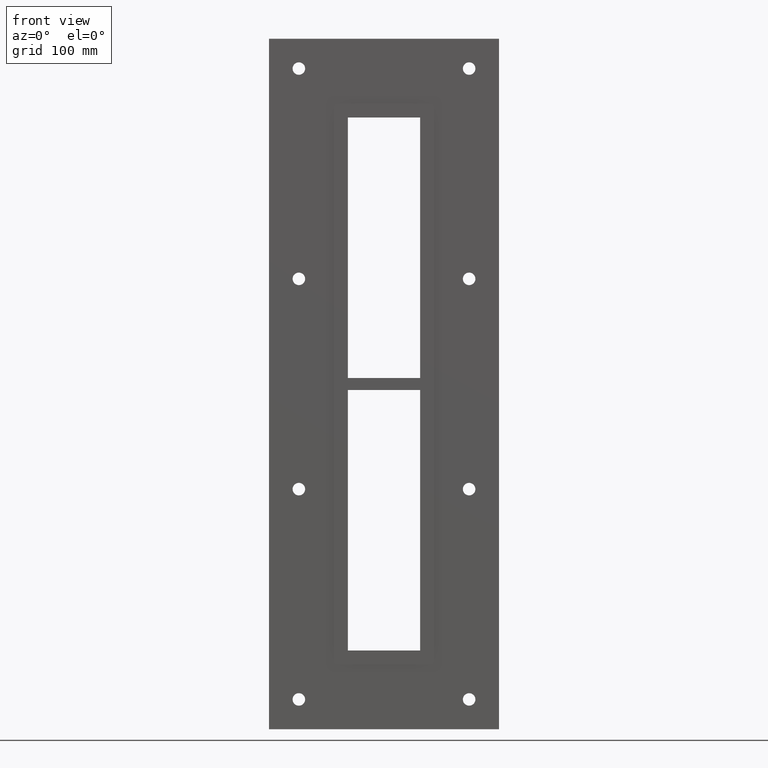
[diagram: clean part render]
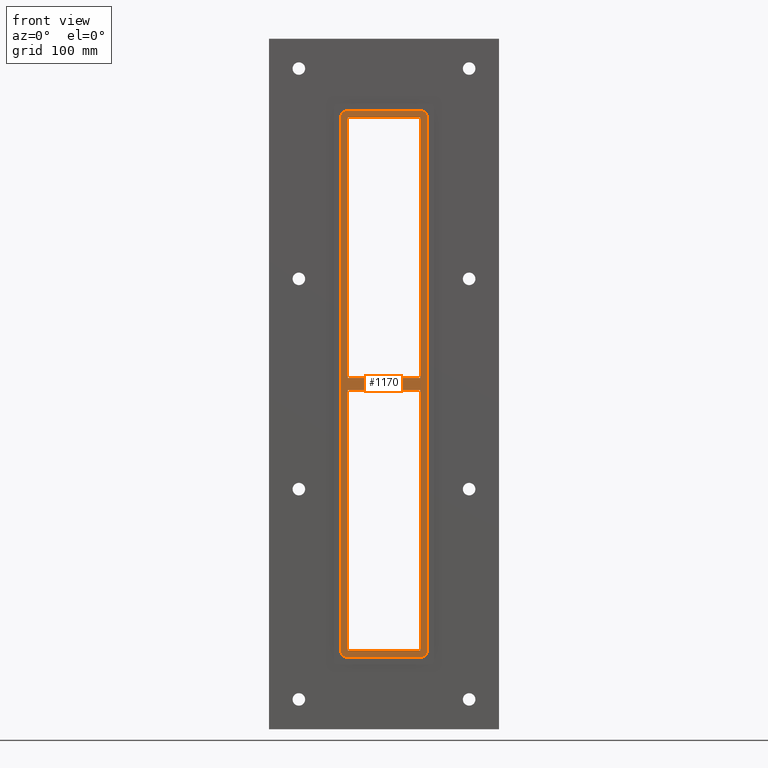
[diagram: same view with one face highlighted and labeled with its STEP entity id]
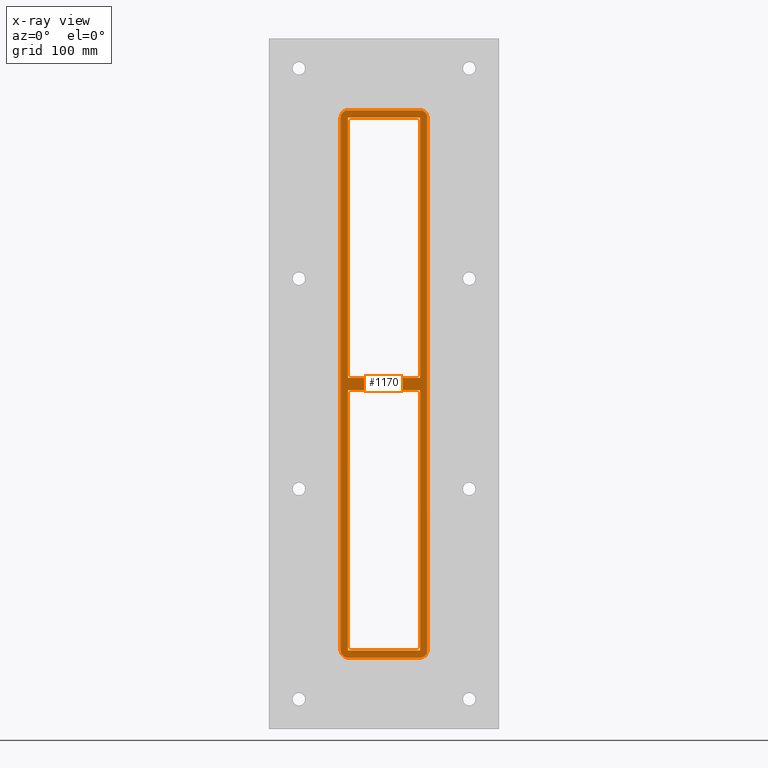
[diagram: x-ray of the same camera — body ghosted, the highlighted face saturated]
A machine part, front view. The second image highlights one B-rep face of the part: STEP entity #1170.
The next image is the same camera in x-ray: the body ghosted, the highlighted face saturated — about 0% of this face is hidden behind the body in this view.
In plain terms, the highlighted planar face has unit normal (0, 1, 0).
Its self-contained STEP definition (entity closure, byte-faithful):
#297=CARTESIAN_POINT('',(30.249999999996362,-3.0,-5.000000000010835));
#298=VERTEX_POINT('',#297);
#299=CARTESIAN_POINT('',(-30.249999999997076,-3.0,-5.000000000011369));
#300=VERTEX_POINT('',#299);
#301=CARTESIAN_POINT('',(30.249999999996362,-3.0,-5.000000000010835));
#302=DIRECTION('',(-1.0,0.0,0.0));
#303=VECTOR('',#302,60.499999999993435);
#304=LINE('',#301,#303);
#305=EDGE_CURVE('',#298,#300,#304,.T.);
#337=CARTESIAN_POINT('',(-30.249999999997076,-3.0,5.0));
#338=VERTEX_POINT('',#337);
#339=CARTESIAN_POINT('',(30.249999999999019,-3.0,5.0));
#340=VERTEX_POINT('',#339);
#341=CARTESIAN_POINT('',(-30.249999999997076,-3.0,5.0));
#342=DIRECTION('',(1.0,0.0,0.0));
#343=VECTOR('',#342,60.499999999996099);
#344=LINE('',#341,#343);
#345=EDGE_CURVE('',#338,#340,#344,.T.);
#386=CARTESIAN_POINT('',(-30.249999999999986,-3.0,223.0));
#387=VERTEX_POINT('',#386);
#394=CARTESIAN_POINT('',(-30.249999999999986,-3.0,5.0));
#395=DIRECTION('',(0.0,0.0,1.0));
#396=VECTOR('',#395,218.0);
#397=LINE('',#394,#396);
#398=EDGE_CURVE('',#338,#387,#397,.T.);
#417=CARTESIAN_POINT('',(30.249999999999986,-3.0,-223.0));
#418=VERTEX_POINT('',#417);
#425=CARTESIAN_POINT('',(30.249999999999986,-3.0,-5.000000000010829));
#426=DIRECTION('',(0.0,0.0,-1.0));
#427=VECTOR('',#426,217.99999999998914);
#428=LINE('',#425,#427);
#429=EDGE_CURVE('',#298,#418,#428,.T.);
#440=CARTESIAN_POINT('',(30.249999999999986,-3.0,223.0));
#441=VERTEX_POINT('',#440);
#442=CARTESIAN_POINT('',(30.249999999999986,-3.0,223.0));
#443=DIRECTION('',(0.0,0.0,-1.0));
#444=VECTOR('',#443,218.0);
#445=LINE('',#442,#444);
#446=EDGE_CURVE('',#441,#340,#445,.T.);
#807=CARTESIAN_POINT('',(-30.249999999999986,-3.0,-223.0));
#808=VERTEX_POINT('',#807);
#809=CARTESIAN_POINT('',(-30.249999999999986,-3.0,-223.0));
#810=DIRECTION('',(0.0,0.0,1.0));
#811=VECTOR('',#810,217.99999999998863);
#812=LINE('',#809,#811);
#813=EDGE_CURVE('',#808,#300,#812,.T.);
#838=CARTESIAN_POINT('',(36.25,-3.0,-222.99999999999997));
#839=VERTEX_POINT('',#838);
#846=CARTESIAN_POINT('',(30.250000000000004,-3.0,-229.0));
#847=VERTEX_POINT('',#846);
#848=CARTESIAN_POINT('',(30.250000000000004,-3.0,-222.99999999999997));
#849=DIRECTION('',(0.0,1.0,0.0));
#850=DIRECTION('',(0.707106781186546,0.0,-0.707106781186549));
#851=AXIS2_PLACEMENT_3D('',#848,#849,#850);
#852=CIRCLE('',#851,6.000000000000001);
#853=EDGE_CURVE('',#839,#847,#852,.T.);
#903=CARTESIAN_POINT('',(-30.250000000000004,-3.0,-229.0));
#904=VERTEX_POINT('',#903);
#905=CARTESIAN_POINT('',(-30.25,-3.0,-229.0));
#906=DIRECTION('',(1.0,0.0,0.0));
#907=VECTOR('',#906,60.5);
#908=LINE('',#905,#907);
#909=EDGE_CURVE('',#904,#847,#908,.T.);
#950=CARTESIAN_POINT('',(36.25,-3.0,223.0));
#951=VERTEX_POINT('',#950);
#958=CARTESIAN_POINT('',(36.25,-3.0,-222.99999999999994));
#959=DIRECTION('',(0.0,0.0,1.0));
#960=VECTOR('',#959,446.0);
#961=LINE('',#958,#960);
#962=EDGE_CURVE('',#839,#951,#961,.T.);
#975=CARTESIAN_POINT('',(-36.25,-3.0,-222.99999999999997));
#976=VERTEX_POINT('',#975);
#977=CARTESIAN_POINT('',(-30.250000000000004,-3.0,-222.99999999999997));
#978=DIRECTION('',(0.0,1.0,0.0));
#979=DIRECTION('',(-0.707106781186546,0.0,-0.707106781186549));
#980=AXIS2_PLACEMENT_3D('',#977,#978,#979);
#981=CIRCLE('',#980,6.000000000000001);
#982=EDGE_CURVE('',#904,#976,#981,.T.);
#1024=CARTESIAN_POINT('',(30.250000000000004,-3.0,229.00000000000003));
#1025=VERTEX_POINT('',#1024);
#1032=CARTESIAN_POINT('',(30.250000000000004,-3.0,223.0));
#1033=DIRECTION('',(0.0,1.0,0.0));
#1034=DIRECTION('',(0.707106781186546,0.0,0.707106781186549));
#1035=AXIS2_PLACEMENT_3D('',#1032,#1033,#1034);
#1036=CIRCLE('',#1035,6.000000000000001);
#1037=EDGE_CURVE('',#1025,#951,#1036,.T.);
#1050=CARTESIAN_POINT('',(-36.25,-3.0,223.0));
#1051=VERTEX_POINT('',#1050);
#1052=CARTESIAN_POINT('',(-36.25,-3.0,223.0));
#1053=DIRECTION('',(0.0,0.0,-1.0));
#1054=VECTOR('',#1053,446.0);
#1055=LINE('',#1052,#1054);
#1056=EDGE_CURVE('',#1051,#976,#1055,.T.);
#1097=CARTESIAN_POINT('',(-30.250000000000004,-3.0,229.00000000000003));
#1098=VERTEX_POINT('',#1097);
#1105=CARTESIAN_POINT('',(30.25,-3.0,229.00000000000003));
#1106=DIRECTION('',(-1.0,0.0,0.0));
#1107=VECTOR('',#1106,60.5);
#1108=LINE('',#1105,#1107);
#1109=EDGE_CURVE('',#1025,#1098,#1108,.T.);
#1122=CARTESIAN_POINT('',(-30.250000000000004,-3.0,223.0));
#1123=DIRECTION('',(0.0,1.0,0.0));
#1124=DIRECTION('',(-0.707106781186546,0.0,0.707106781186549));
#1125=AXIS2_PLACEMENT_3D('',#1122,#1123,#1124);
#1126=CIRCLE('',#1125,6.000000000000001);
#1127=EDGE_CURVE('',#1051,#1098,#1126,.T.);
#1133=CARTESIAN_POINT('',(0.0,-3.0,1.808167E-014));
#1134=DIRECTION('',(0.0,1.0,0.0));
#1135=DIRECTION('',(0.0,0.0,1.0));
#1136=AXIS2_PLACEMENT_3D('',#1133,#1134,#1135);
#1137=PLANE('',#1136);
#1138=ORIENTED_EDGE('',*,*,#982,.F.);
#1139=ORIENTED_EDGE('',*,*,#909,.T.);
#1140=ORIENTED_EDGE('',*,*,#853,.F.);
#1141=ORIENTED_EDGE('',*,*,#962,.T.);
#1142=ORIENTED_EDGE('',*,*,#1037,.F.);
#1143=ORIENTED_EDGE('',*,*,#1109,.T.);
#1144=ORIENTED_EDGE('',*,*,#1127,.F.);
#1145=ORIENTED_EDGE('',*,*,#1056,.T.);
#1146=EDGE_LOOP('',(#1138,#1139,#1140,#1141,#1142,#1143,#1144,#1145));
#1147=FACE_OUTER_BOUND('',#1146,.T.);
#1148=ORIENTED_EDGE('',*,*,#398,.T.);
#1149=CARTESIAN_POINT('',(-30.249999999999986,-3.0,223.0));
#1150=DIRECTION('',(1.0,0.0,0.0));
#1151=VECTOR('',#1150,60.499999999999972);
#1152=LINE('',#1149,#1151);
#1153=EDGE_CURVE('',#387,#441,#1152,.T.);
#1154=ORIENTED_EDGE('',*,*,#1153,.T.);
#1155=ORIENTED_EDGE('',*,*,#446,.T.);
#1156=ORIENTED_EDGE('',*,*,#345,.F.);
#1157=EDGE_LOOP('',(#1148,#1154,#1155,#1156));
#1158=FACE_BOUND('',#1157,.T.);
#1159=ORIENTED_EDGE('',*,*,#305,.F.);
#1160=ORIENTED_EDGE('',*,*,#429,.T.);
#1161=CARTESIAN_POINT('',(30.249999999999986,-3.0,-223.0));
#1162=DIRECTION('',(-1.0,0.0,0.0));
#1163=VECTOR('',#1162,60.499999999999972);
#1164=LINE('',#1161,#1163);
#1165=EDGE_CURVE('',#418,#808,#1164,.T.);
#1166=ORIENTED_EDGE('',*,*,#1165,.T.);
#1167=ORIENTED_EDGE('',*,*,#813,.T.);
#1168=EDGE_LOOP('',(#1159,#1160,#1166,#1167));
#1169=FACE_BOUND('',#1168,.T.);
#1170=ADVANCED_FACE('',(#1147,#1158,#1169),#1137,.F.);